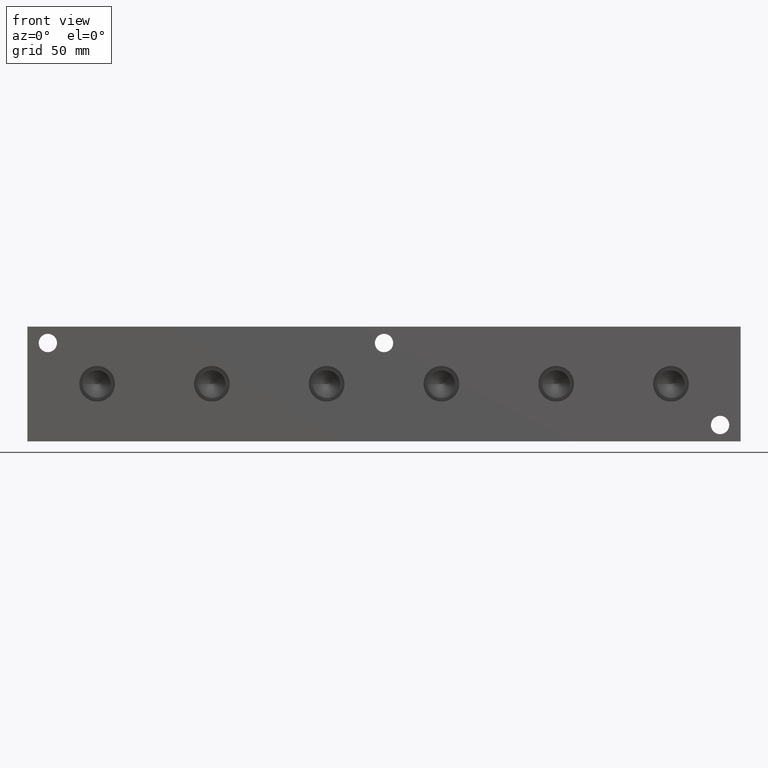
[diagram: clean part render]
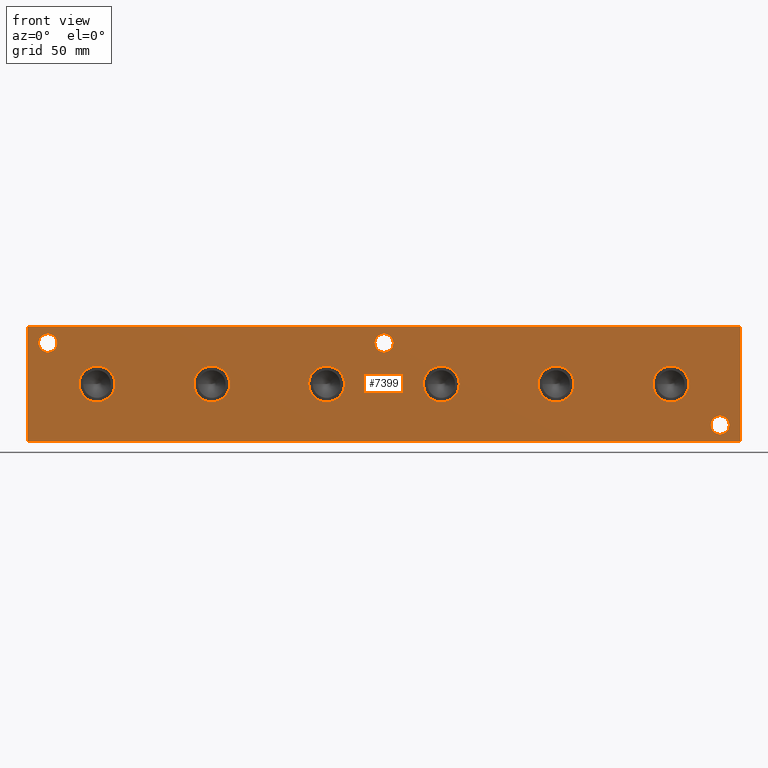
[diagram: same view with one face highlighted and labeled with its STEP entity id]
A machine part, front view. The second image highlights one B-rep face of the part: STEP entity #7399.
In plain terms, the highlighted planar face has unit normal (0, -1, 0).
Its self-contained STEP definition (entity closure, byte-faithful):
#92=CIRCLE('',#7639,3.5687);
#93=CIRCLE('',#7640,3.5687);
#95=CIRCLE('',#7648,3.5687);
#96=CIRCLE('',#7649,3.5687);
#98=CIRCLE('',#7657,3.5687);
#99=CIRCLE('',#7658,3.5687);
#106=CIRCLE('',#7676,6.9342);
#107=CIRCLE('',#7677,6.9342);
#113=CIRCLE('',#7687,6.9342);
#114=CIRCLE('',#7688,6.9342);
#120=CIRCLE('',#7698,6.9342);
#121=CIRCLE('',#7699,6.9342);
#127=CIRCLE('',#7709,6.9342);
#128=CIRCLE('',#7710,6.9342);
#134=CIRCLE('',#7720,6.9342);
#135=CIRCLE('',#7721,6.9342);
#141=CIRCLE('',#7731,6.9342);
#142=CIRCLE('',#7732,6.9342);
#230=FACE_BOUND('',#1270,.T.);
#231=FACE_BOUND('',#1271,.T.);
#232=FACE_BOUND('',#1272,.T.);
#233=FACE_BOUND('',#1273,.T.);
#234=FACE_BOUND('',#1274,.T.);
#235=FACE_BOUND('',#1275,.T.);
#236=FACE_BOUND('',#1276,.T.);
#237=FACE_BOUND('',#1277,.T.);
#238=FACE_BOUND('',#1278,.T.);
#461=PLANE('',#7797);
#838=FACE_OUTER_BOUND('',#1269,.T.);
#1269=EDGE_LOOP('',(#6585,#6586,#6587,#6588));
#1270=EDGE_LOOP('',(#6589,#6590));
#1271=EDGE_LOOP('',(#6591,#6592));
#1272=EDGE_LOOP('',(#6593,#6594));
#1273=EDGE_LOOP('',(#6595,#6596));
#1274=EDGE_LOOP('',(#6597,#6598));
#1275=EDGE_LOOP('',(#6599,#6600));
#1276=EDGE_LOOP('',(#6601,#6602));
#1277=EDGE_LOOP('',(#6603,#6604));
#1278=EDGE_LOOP('',(#6605,#6606));
#1536=LINE('',#11460,#2225);
#1966=LINE('',#12721,#2655);
#1971=LINE('',#12730,#2660);
#1972=LINE('',#12732,#2661);
#2225=VECTOR('',#8178,10.);
#2655=VECTOR('',#9242,10.);
#2660=VECTOR('',#9251,10.);
#2661=VECTOR('',#9254,10.);
#3176=VERTEX_POINT('',#11458);
#3177=VERTEX_POINT('',#11459);
#3460=VERTEX_POINT('',#12412);
#3461=VERTEX_POINT('',#12413);
#3465=VERTEX_POINT('',#12428);
#3466=VERTEX_POINT('',#12429);
#3470=VERTEX_POINT('',#12444);
#3471=VERTEX_POINT('',#12445);
#3481=VERTEX_POINT('',#12480);
#3482=VERTEX_POINT('',#12481);
#3489=VERTEX_POINT('',#12502);
#3490=VERTEX_POINT('',#12503);
#3497=VERTEX_POINT('',#12524);
#3498=VERTEX_POINT('',#12525);
#3505=VERTEX_POINT('',#12546);
#3506=VERTEX_POINT('',#12547);
#3513=VERTEX_POINT('',#12568);
#3514=VERTEX_POINT('',#12569);
#3521=VERTEX_POINT('',#12590);
#3522=VERTEX_POINT('',#12591);
#3563=VERTEX_POINT('',#12719);
#3565=VERTEX_POINT('',#12728);
#4016=EDGE_CURVE('',#3176,#3177,#1536,.T.);
#4431=EDGE_CURVE('',#3460,#3461,#92,.T.);
#4432=EDGE_CURVE('',#3461,#3460,#93,.T.);
#4440=EDGE_CURVE('',#3465,#3466,#95,.T.);
#4441=EDGE_CURVE('',#3466,#3465,#96,.T.);
#4449=EDGE_CURVE('',#3470,#3471,#98,.T.);
#4450=EDGE_CURVE('',#3471,#3470,#99,.T.);
#4467=EDGE_CURVE('',#3481,#3482,#106,.T.);
#4468=EDGE_CURVE('',#3482,#3481,#107,.T.);
#4477=EDGE_CURVE('',#3489,#3490,#113,.T.);
#4478=EDGE_CURVE('',#3490,#3489,#114,.T.);
#4487=EDGE_CURVE('',#3497,#3498,#120,.T.);
#4488=EDGE_CURVE('',#3498,#3497,#121,.T.);
#4497=EDGE_CURVE('',#3505,#3506,#127,.T.);
#4498=EDGE_CURVE('',#3506,#3505,#128,.T.);
#4507=EDGE_CURVE('',#3513,#3514,#134,.T.);
#4508=EDGE_CURVE('',#3514,#3513,#135,.T.);
#4517=EDGE_CURVE('',#3521,#3522,#141,.T.);
#4518=EDGE_CURVE('',#3522,#3521,#142,.T.);
#4576=EDGE_CURVE('',#3563,#3176,#1966,.T.);
#4581=EDGE_CURVE('',#3565,#3177,#1971,.T.);
#4582=EDGE_CURVE('',#3563,#3565,#1972,.T.);
#6585=ORIENTED_EDGE('',*,*,#4582,.T.);
#6586=ORIENTED_EDGE('',*,*,#4581,.T.);
#6587=ORIENTED_EDGE('',*,*,#4016,.F.);
#6588=ORIENTED_EDGE('',*,*,#4576,.F.);
#6589=ORIENTED_EDGE('',*,*,#4431,.T.);
#6590=ORIENTED_EDGE('',*,*,#4432,.T.);
#6591=ORIENTED_EDGE('',*,*,#4440,.T.);
#6592=ORIENTED_EDGE('',*,*,#4441,.T.);
#6593=ORIENTED_EDGE('',*,*,#4449,.T.);
#6594=ORIENTED_EDGE('',*,*,#4450,.T.);
#6595=ORIENTED_EDGE('',*,*,#4467,.T.);
#6596=ORIENTED_EDGE('',*,*,#4468,.T.);
#6597=ORIENTED_EDGE('',*,*,#4477,.T.);
#6598=ORIENTED_EDGE('',*,*,#4478,.T.);
#6599=ORIENTED_EDGE('',*,*,#4487,.T.);
#6600=ORIENTED_EDGE('',*,*,#4488,.T.);
#6601=ORIENTED_EDGE('',*,*,#4497,.T.);
#6602=ORIENTED_EDGE('',*,*,#4498,.T.);
#6603=ORIENTED_EDGE('',*,*,#4507,.T.);
#6604=ORIENTED_EDGE('',*,*,#4508,.T.);
#6605=ORIENTED_EDGE('',*,*,#4517,.T.);
#6606=ORIENTED_EDGE('',*,*,#4518,.T.);
#7399=ADVANCED_FACE('',(#838,#230,#231,#232,#233,#234,#235,#236,#237,#238),
#461,.T.);
#7639=AXIS2_PLACEMENT_3D('',#12414,#8881,#8882);
#7640=AXIS2_PLACEMENT_3D('',#12415,#8883,#8884);
#7648=AXIS2_PLACEMENT_3D('',#12430,#8901,#8902);
#7649=AXIS2_PLACEMENT_3D('',#12431,#8903,#8904);
#7657=AXIS2_PLACEMENT_3D('',#12446,#8921,#8922);
#7658=AXIS2_PLACEMENT_3D('',#12447,#8923,#8924);
#7676=AXIS2_PLACEMENT_3D('',#12482,#8965,#8966);
#7677=AXIS2_PLACEMENT_3D('',#12483,#8967,#8968);
#7687=AXIS2_PLACEMENT_3D('',#12504,#8990,#8991);
#7688=AXIS2_PLACEMENT_3D('',#12505,#8992,#8993);
#7698=AXIS2_PLACEMENT_3D('',#12526,#9015,#9016);
#7699=AXIS2_PLACEMENT_3D('',#12527,#9017,#9018);
#7709=AXIS2_PLACEMENT_3D('',#12548,#9040,#9041);
#7710=AXIS2_PLACEMENT_3D('',#12549,#9042,#9043);
#7720=AXIS2_PLACEMENT_3D('',#12570,#9065,#9066);
#7721=AXIS2_PLACEMENT_3D('',#12571,#9067,#9068);
#7731=AXIS2_PLACEMENT_3D('',#12592,#9090,#9091);
#7732=AXIS2_PLACEMENT_3D('',#12593,#9092,#9093);
#7797=AXIS2_PLACEMENT_3D('',#12731,#9252,#9253);
#8178=DIRECTION('',(1.,0.,0.));
#8881=DIRECTION('center_axis',(0.,1.,0.));
#8882=DIRECTION('ref_axis',(1.,0.,0.));
#8883=DIRECTION('center_axis',(0.,1.,0.));
#8884=DIRECTION('ref_axis',(1.,0.,0.));
#8901=DIRECTION('center_axis',(0.,1.,0.));
#8902=DIRECTION('ref_axis',(1.,0.,0.));
#8903=DIRECTION('center_axis',(0.,1.,0.));
#8904=DIRECTION('ref_axis',(1.,0.,0.));
#8921=DIRECTION('center_axis',(0.,1.,0.));
#8922=DIRECTION('ref_axis',(1.,0.,0.));
#8923=DIRECTION('center_axis',(0.,1.,0.));
#8924=DIRECTION('ref_axis',(1.,0.,0.));
#8965=DIRECTION('center_axis',(0.,1.,0.));
#8966=DIRECTION('ref_axis',(1.,0.,0.));
#8967=DIRECTION('center_axis',(0.,1.,0.));
#8968=DIRECTION('ref_axis',(1.,0.,0.));
#8990=DIRECTION('center_axis',(0.,1.,0.));
#8991=DIRECTION('ref_axis',(1.,0.,0.));
#8992=DIRECTION('center_axis',(0.,1.,0.));
#8993=DIRECTION('ref_axis',(1.,0.,0.));
#9015=DIRECTION('center_axis',(0.,1.,0.));
#9016=DIRECTION('ref_axis',(1.,0.,0.));
#9017=DIRECTION('center_axis',(0.,1.,0.));
#9018=DIRECTION('ref_axis',(1.,0.,0.));
#9040=DIRECTION('center_axis',(0.,1.,0.));
#9041=DIRECTION('ref_axis',(1.,0.,0.));
#9042=DIRECTION('center_axis',(0.,1.,0.));
#9043=DIRECTION('ref_axis',(1.,0.,0.));
#9065=DIRECTION('center_axis',(0.,1.,0.));
#9066=DIRECTION('ref_axis',(1.,0.,0.));
#9067=DIRECTION('center_axis',(0.,1.,0.));
#9068=DIRECTION('ref_axis',(1.,0.,0.));
#9090=DIRECTION('center_axis',(0.,1.,0.));
#9091=DIRECTION('ref_axis',(1.,0.,0.));
#9092=DIRECTION('center_axis',(0.,1.,0.));
#9093=DIRECTION('ref_axis',(1.,0.,0.));
#9242=DIRECTION('',(0.,0.,1.));
#9251=DIRECTION('',(0.,0.,1.));
#9252=DIRECTION('center_axis',(0.,-1.,0.));
#9253=DIRECTION('ref_axis',(1.,0.,0.));
#9254=DIRECTION('',(1.,0.,0.));
#11458=CARTESIAN_POINT('',(0.,0.,44.45));
#11459=CARTESIAN_POINT('',(276.225,0.,44.45));
#11460=CARTESIAN_POINT('',(0.,0.,44.45));
#12412=CARTESIAN_POINT('',(141.6939,0.,38.1));
#12413=CARTESIAN_POINT('',(134.5565,0.,38.1));
#12414=CARTESIAN_POINT('Origin',(138.1252,0.,38.1));
#12415=CARTESIAN_POINT('Origin',(138.1252,0.,38.1));
#12428=CARTESIAN_POINT('',(11.4935,0.,38.1));
#12429=CARTESIAN_POINT('',(4.3561,0.,38.1));
#12430=CARTESIAN_POINT('Origin',(7.9248,0.,38.1));
#12431=CARTESIAN_POINT('Origin',(7.9248,0.,38.1));
#12444=CARTESIAN_POINT('',(271.8435,0.,6.35));
#12445=CARTESIAN_POINT('',(264.7061,0.,6.35));
#12446=CARTESIAN_POINT('Origin',(268.2748,0.,6.35));
#12447=CARTESIAN_POINT('Origin',(268.2748,0.,6.35));
#12480=CARTESIAN_POINT('',(211.709,0.,22.225));
#12481=CARTESIAN_POINT('',(197.8406,0.,22.225));
#12482=CARTESIAN_POINT('Origin',(204.7748,0.,22.225));
#12483=CARTESIAN_POINT('Origin',(204.7748,0.,22.225));
#12502=CARTESIAN_POINT('',(122.809,0.,22.225));
#12503=CARTESIAN_POINT('',(108.9406,0.,22.225));
#12504=CARTESIAN_POINT('Origin',(115.8748,0.,22.225));
#12505=CARTESIAN_POINT('Origin',(115.8748,0.,22.225));
#12524=CARTESIAN_POINT('',(33.909,0.,22.225));
#12525=CARTESIAN_POINT('',(20.0406,0.,22.225));
#12526=CARTESIAN_POINT('Origin',(26.9748,0.,22.225));
#12527=CARTESIAN_POINT('Origin',(26.9748,0.,22.225));
#12546=CARTESIAN_POINT('',(78.359,0.,22.225));
#12547=CARTESIAN_POINT('',(64.4906,0.,22.225));
#12548=CARTESIAN_POINT('Origin',(71.4248,0.,22.225));
#12549=CARTESIAN_POINT('Origin',(71.4248,0.,22.225));
#12568=CARTESIAN_POINT('',(167.259,0.,22.225));
#12569=CARTESIAN_POINT('',(153.3906,0.,22.225));
#12570=CARTESIAN_POINT('Origin',(160.3248,0.,22.225));
#12571=CARTESIAN_POINT('Origin',(160.3248,0.,22.225));
#12590=CARTESIAN_POINT('',(256.159,0.,22.225));
#12591=CARTESIAN_POINT('',(242.2906,0.,22.225));
#12592=CARTESIAN_POINT('Origin',(249.2248,0.,22.225));
#12593=CARTESIAN_POINT('Origin',(249.2248,0.,22.225));
#12719=CARTESIAN_POINT('',(0.,0.,0.));
#12721=CARTESIAN_POINT('',(0.,0.,0.));
#12728=CARTESIAN_POINT('',(276.225,0.,0.));
#12730=CARTESIAN_POINT('',(276.225,0.,0.));
#12731=CARTESIAN_POINT('Origin',(0.,0.,0.));
#12732=CARTESIAN_POINT('',(0.,0.,0.));